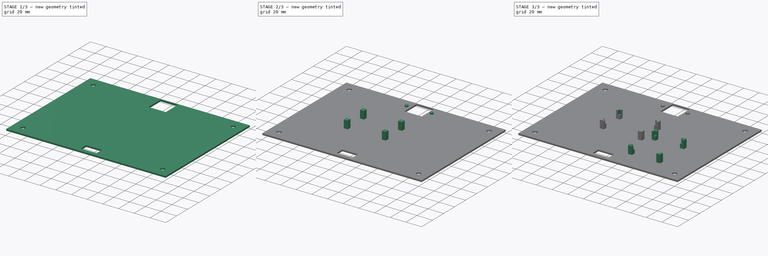
[diagram: build sequence overview — one tinted view per stage of 3, left to right]
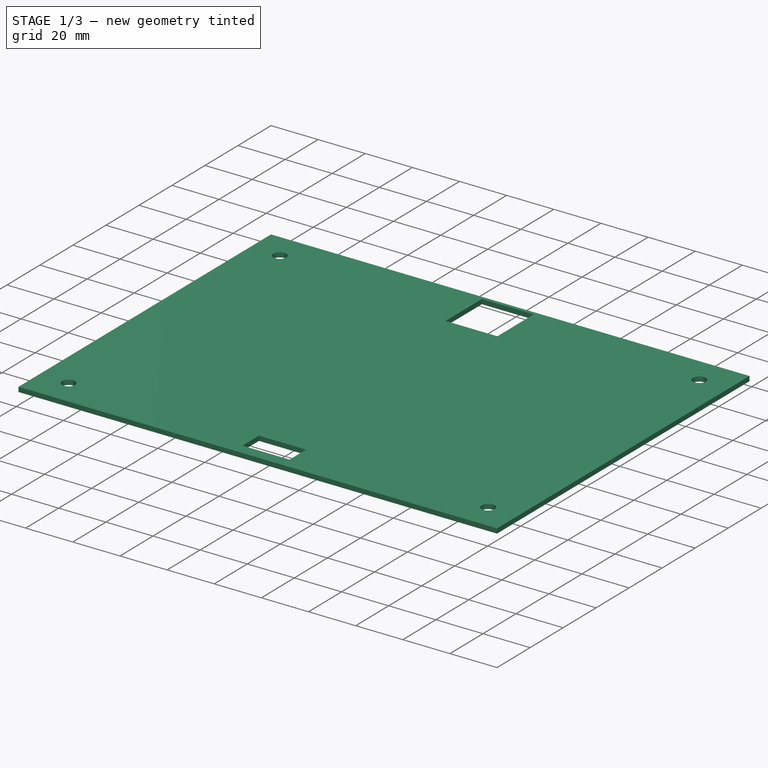
[diagram: stage 1 of 3 — iso view after this stage's code; geometry added in this stage tinted green]
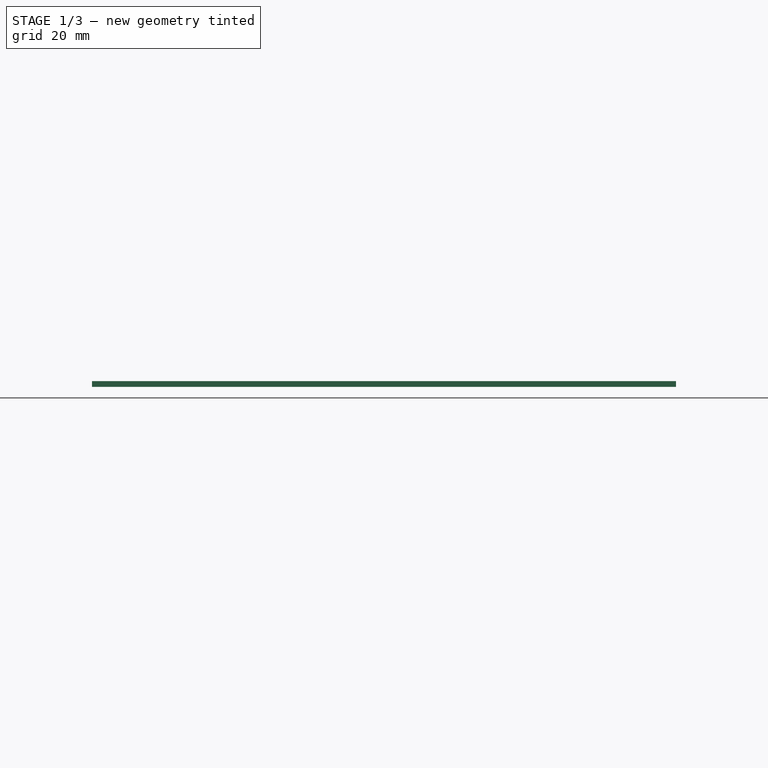
[diagram: stage 1 of 3 — front view after this stage's code; geometry added in this stage tinted green]
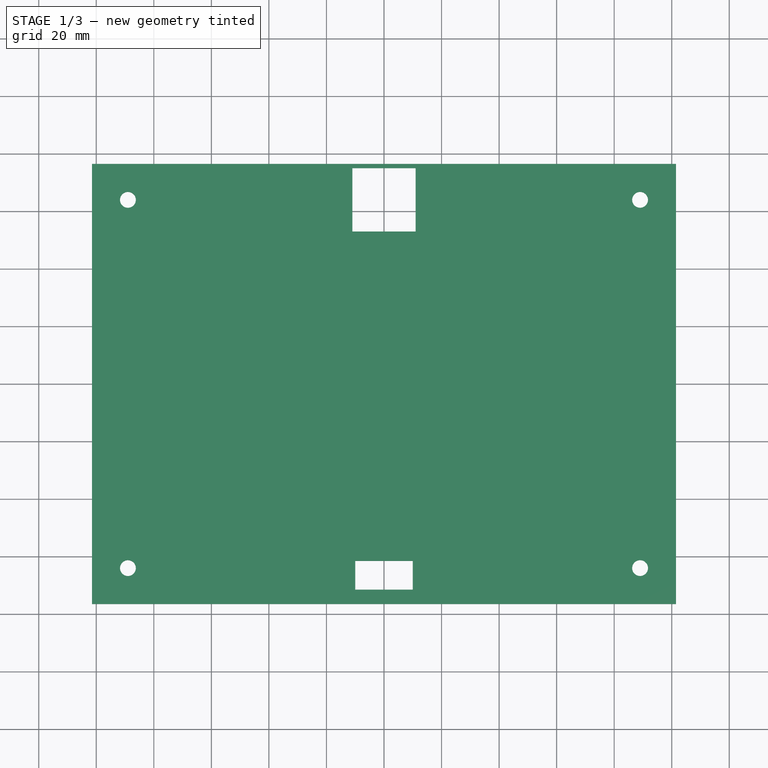
[diagram: stage 1 of 3 — top view after this stage's code; geometry added in this stage tinted green]
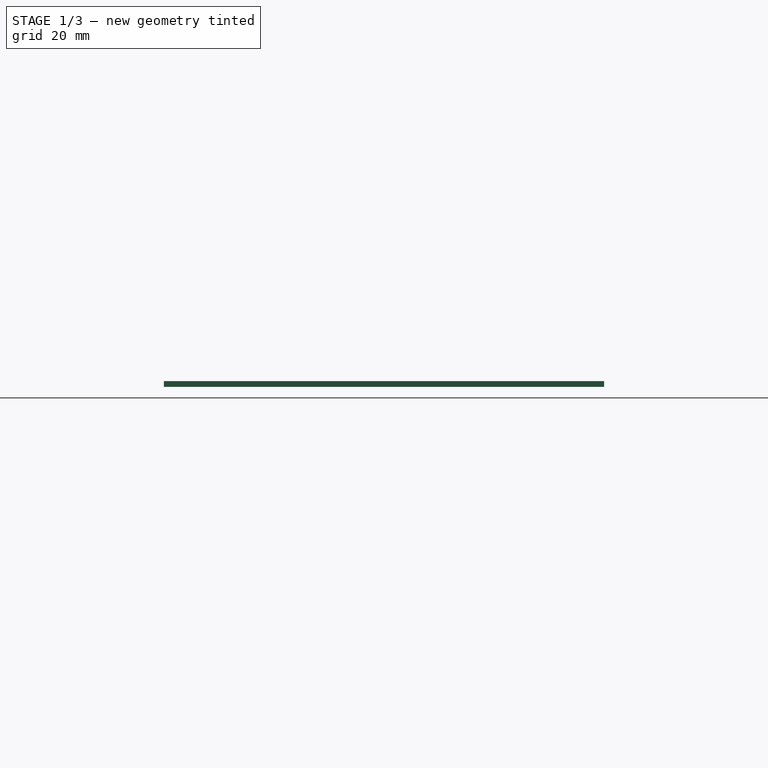
[diagram: stage 1 of 3 — right view after this stage's code; geometry added in this stage tinted green]
FCSTD DOCUMENT  (FreeCAD 0.21R33771 (Git))
Label: Frame75Back
License: All rights reserved
LicenseURL: https://en.wikipedia.org/wiki/All_rights_reserved
objects: Sketcher::SketchObject×8, PartDesign::Pad×4, PartDesign::Pocket×4, PartDesign::Plane×1, PartDesign::Body×1
note: 26 computed .brp shape members not serialized (recipe doc carries the construction recipe); baked Part::Feature solids carry a one-line shape summary decoded from their .brp

FEATURE [PartDesign::Plane] DatumPlane
  Length = 238.247
  MapMode = 5
  ResizeMode = 0
  Support = -> [XY_Plane]
  Width = 188.247
FEATURE [Sketcher::SketchObject] Sketch  label="FrameBaseS"
  AttachmentOffset = pos=(0,0,-2) rot=(0,0,1;0rad)
  FullyConstrained = true
  MapMode = 5
  Placement = pos=(0,0,-2) rot=(0,0,1;0rad)
  Support = -> [DatumPlane]
  sketch-geometry (5):
    g0: LineSegment StartX=-101.5 StartY=-76.5 StartZ=0 EndX=-101.5 EndY=76.5 EndZ=0
    g1: LineSegment StartX=-101.5 StartY=76.5 StartZ=0 EndX=101.5 EndY=76.5 EndZ=0
    g2: LineSegment StartX=101.5 StartY=76.5 StartZ=0 EndX=101.5 EndY=-76.5 EndZ=0
    g3: LineSegment StartX=101.5 StartY=-76.5 StartZ=0 EndX=-101.5 EndY=-76.5 EndZ=0
    g4: GeomPoint X=0 Y=0 Z=0
  constraints (12):
    c: Coincident(g0,g1)
    c: Coincident(g1,g2)
    c: Coincident(g2,g3)
    c: Coincident(g3,g0)
    c: Horizontal(g1)
    c: Horizontal(g3)
    c: Vertical(g0)
    c: Vertical(g2)
    c: Symmetric(g1,g0,g4)
    c: Coincident(g4,g-1)
    c: DistanceY(g0,g0) = 153  'Frame Height'
    c: DistanceX(g1,g1) = 203  'Frame Width'
FEATURE [PartDesign::Pad] Pad  label="FrameBase"
  Direction = (0,0,1)
  Length = 2
  Length2 = 10
  Profile = -> Sketch
  ReferenceAxis = -> Sketch [N_Axis]
  Type = 0
FEATURE [Sketcher::SketchObject] Sketch001  label="HolesS"
  ExternalGeometry = -> [Pad]
  FullyConstrained = true
  MapMode = 5
  Support = -> [DatumPlane]
  sketch-geometry (8):
    g0: LineSegment StartX=-89 StartY=64 StartZ=0 EndX=89 EndY=64 EndZ=0
    g1: LineSegment StartX=89 StartY=64 StartZ=0 EndX=89 EndY=-64 EndZ=0
    g2: LineSegment StartX=89 StartY=-64 StartZ=0 EndX=-89 EndY=-64 EndZ=0
    g3: LineSegment StartX=-89 StartY=-64 StartZ=0 EndX=-89 EndY=64 EndZ=0
    g4: Circle CenterX=89 CenterY=64 CenterZ=0 NormalX=0 NormalY=0 NormalZ=1 AngleXU=0 Radius=2.75
    g5: Circle CenterX=89 CenterY=-64 CenterZ=0 NormalX=0 NormalY=0 NormalZ=1 AngleXU=0 Radius=2.75
    g6: Circle CenterX=-89 CenterY=-64 CenterZ=0 NormalX=0 NormalY=0 NormalZ=1 AngleXU=0 Radius=2.75
    g7: Circle CenterX=-89 CenterY=64 CenterZ=0 NormalX=0 NormalY=0 NormalZ=1 AngleXU=0 Radius=2.75
  constraints (20):
    c: Horizontal(g0)
    c: Vertical(g1)
    c: Horizontal(g2)
    c: Vertical(g3)
    c: DistanceX(g-5,g3) = 12.5
    c: DistanceX(g1,g-6) = 12.5
    c: DistanceY(g0,g-5) = 12.5
    c: DistanceY(g-4,g2) = 12.5
    c: Coincident(g0,g3)
    c: Coincident(g3,g2)
    c: Coincident(g1,g2)
    c: Coincident(g0,g1)
    c: Equal(g4,g5)
    c: Equal(g4,g6)
    c: Equal(g4,g7)
    c: Diameter(g4) = 5.5  'HolesDiameter'
    c: Coincident(g0,g7)
    c: Coincident(g4,g0)
    c: Coincident(g5,g1)
    c: Coincident(g6,g2)
FEATURE [Sketcher::SketchObject] Sketch002  label="CutoutsS"
  ExternalGeometry = -> [Pad]
  FullyConstrained = true
  MapMode = 5
  Support = -> [DatumPlane]
  sketch-geometry (10):
    g0: LineSegment StartX=-10 StartY=-61.5 StartZ=0 EndX=-10 EndY=-71.5 EndZ=0
    g1: LineSegment StartX=-10 StartY=-71.5 StartZ=0 EndX=10 EndY=-71.5 EndZ=0
    g2: LineSegment StartX=10 StartY=-71.5 StartZ=0 EndX=10 EndY=-61.5 EndZ=0
    g3: LineSegment StartX=10 StartY=-61.5 StartZ=0 EndX=-10 EndY=-61.5 EndZ=0
    g4: GeomPoint X=0 Y=-66.5 Z=0
    g5: LineSegment StartX=-11 StartY=75 StartZ=0 EndX=-11 EndY=53 EndZ=0
    g6: LineSegment StartX=-11 StartY=53 StartZ=0 EndX=11 EndY=53 EndZ=0
    g7: LineSegment StartX=11 StartY=53 StartZ=0 EndX=11 EndY=75 EndZ=0
    g8: LineSegment StartX=11 StartY=75 StartZ=0 EndX=-11 EndY=75 EndZ=0
    g9: GeomPoint X=0 Y=64 Z=0
  constraints (26):
    c: Coincident(g0,g1)
    c: Coincident(g1,g2)
    c: Coincident(g2,g3)
    c: Coincident(g3,g0)
    c: Horizontal(g1)
    c: Horizontal(g3)
    c: Vertical(g0)
    c: Vertical(g2)
    c: Symmetric(g1,g0,g4)
    c: PointOnObject(g4,g-2)
    c: DistanceX(g3,g3) = 20  'CableWidth'
    c: DistanceY(g0,g0) = 10  'CableHeight'
    c: Distance(g4,g-3) = 10  'CableOffsetY'
    c: Coincident(g5,g6)
    c: Coincident(g6,g7)
    c: Coincident(g7,g8)
    c: Coincident(g8,g5)
    c: Horizontal(g6)
    c: Horizontal(g8)
    c: Vertical(g5)
    c: Vertical(g7)
    c: Symmetric(g6,g5,g9)
    c: DistanceX(g8,g8) = 22  'SensorWidth'
    c: DistanceY(g5,g5) = 22  'SensorHeight'
    c: PointOnObject(g9,g-2)
    c: Distance(g9,g-4) = 12.5  'SensorOffsetY'
FEATURE [PartDesign::Pocket] Pocket001  label="Cutouts"
  BaseFeature = -> Pad
  Direction = (0,0,-1)
  Length = 5
  Length2 = 5
  Profile = -> Sketch002
  ReferenceAxis = -> Sketch002 [N_Axis]
  Type = 2
FEATURE [PartDesign::Pocket] Pocket  label="Holes"
  BaseFeature = -> Pocket001
  Direction = (0,0,-1)
  Length = 5
  Length2 = 5
  Profile = -> Sketch001
  ReferenceAxis = -> Sketch001 [N_Axis]
  Type = 2
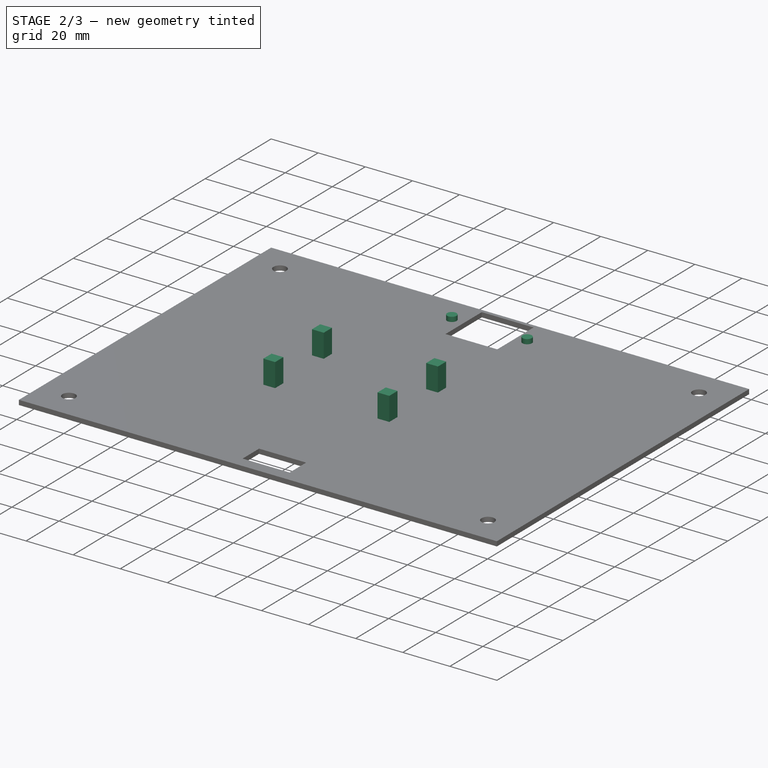
[diagram: stage 2 of 3 — iso view after this stage's code; geometry added in this stage tinted green]
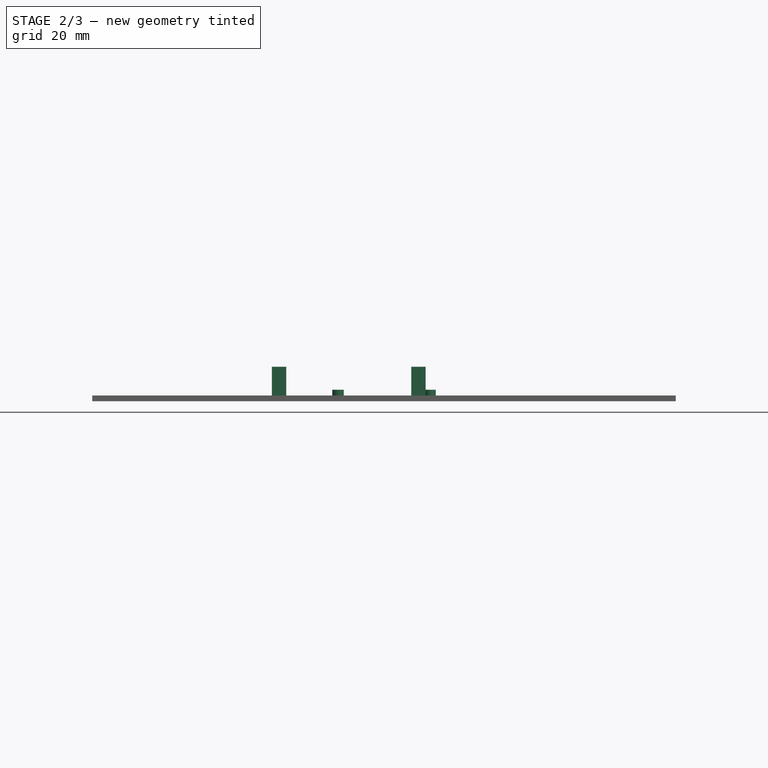
[diagram: stage 2 of 3 — front view after this stage's code; geometry added in this stage tinted green]
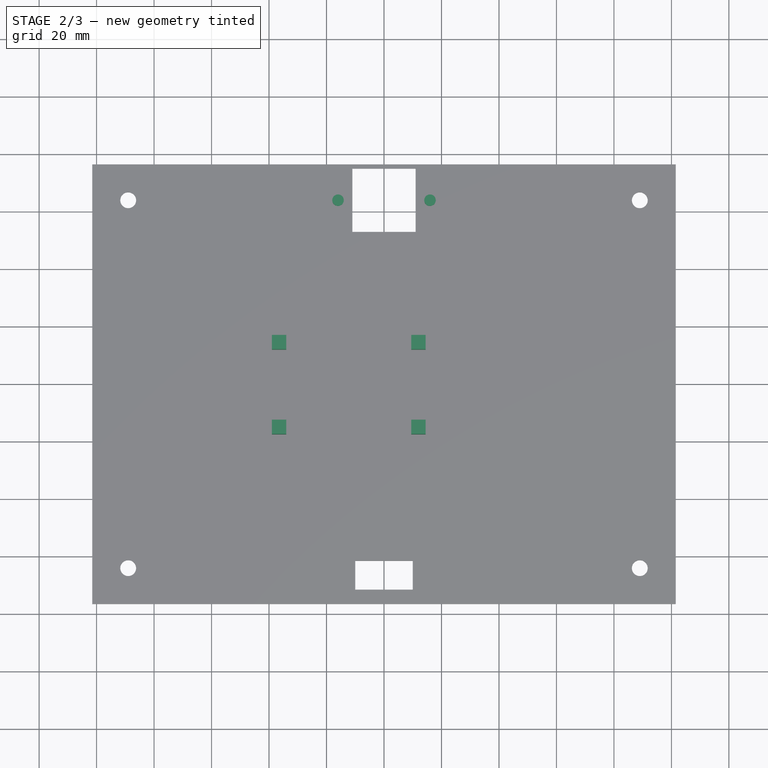
[diagram: stage 2 of 3 — top view after this stage's code; geometry added in this stage tinted green]
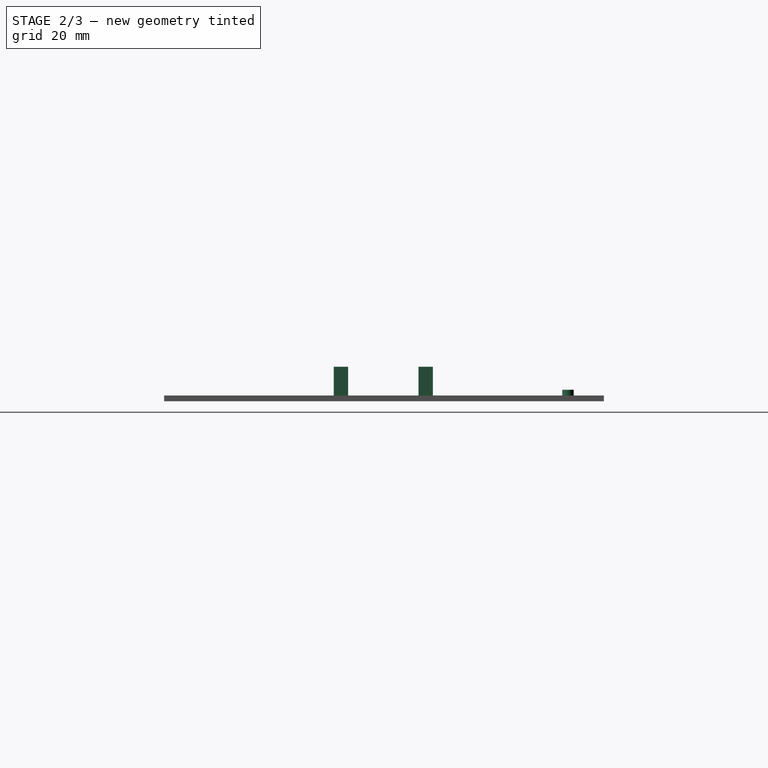
[diagram: stage 2 of 3 — right view after this stage's code; geometry added in this stage tinted green]
FEATURE [Sketcher::SketchObject] Sketch003  label="PegsS"
  ExternalGeometry = -> [Pad]
  FullyConstrained = true
  MapMode = 5
  Support = -> [DatumPlane]
  sketch-geometry (2):
    g0: Circle CenterX=-16 CenterY=64 CenterZ=0 NormalX=0 NormalY=0 NormalZ=1 AngleXU=0 Radius=2
    g1: Circle CenterX=16 CenterY=64 CenterZ=0 NormalX=0 NormalY=0 NormalZ=1 AngleXU=0 Radius=2
  constraints (6):
    c: Equal(g0,g1)
    c: Diameter(g0) = 4  'PegDiameter'
    c: Distance(g0,g-3) = 12.5  'LPegOffsetY'
    c: Distance(g1,g-3) = 12.5  'RPegOffsetY'
    c: DistanceX(g-2,g0) = -16  'LPegOffsetX'
    c: DistanceX(g-2,g1) = 16  'RPegOffsetX'
FEATURE [PartDesign::Pad] Pad001  label="Pegs"
  BaseFeature = -> Pocket
  Direction = (0,0,1)
  Length = 2
  Length2 = 10
  Profile = -> Sketch003
  ReferenceAxis = -> Sketch003 [N_Axis]
  Type = 0
FEATURE [Sketcher::SketchObject] Sketch005  label="ESP32MountsS"
  FullyConstrained = true
  MapMode = 5
  Support = -> [DatumPlane]
  sketch-geometry (25):
    g0: LineSegment StartX=-39 StartY=17 StartZ=0 EndX=-39 EndY=12 EndZ=0
    g1: LineSegment StartX=-39 StartY=12 StartZ=0 EndX=-34 EndY=12 EndZ=0
    g2: LineSegment StartX=-34 StartY=12 StartZ=0 EndX=-34 EndY=17 EndZ=0
    g3: LineSegment StartX=-34 StartY=17 StartZ=0 EndX=-39 EndY=17 EndZ=0
    g4: GeomPoint X=-36.5 Y=14.5 Z=0
    g5: LineSegment StartX=9.5 StartY=17 StartZ=0 EndX=9.5 EndY=12 EndZ=0
    g6: LineSegment StartX=9.5 StartY=12 StartZ=0 EndX=14.5 EndY=12 EndZ=0
    g7: LineSegment StartX=14.5 StartY=12 StartZ=0 EndX=14.5 EndY=17 EndZ=0
    g8: LineSegment StartX=14.5 StartY=17 StartZ=0 EndX=9.5 EndY=17 EndZ=0
    g9: GeomPoint X=12 Y=14.5 Z=0
    g10: LineSegment StartX=-39 StartY=-12.5 StartZ=0 EndX=-39 EndY=-17.5 EndZ=0
    g11: LineSegment StartX=-39 StartY=-17.5 StartZ=0 EndX=-34 EndY=-17.5 EndZ=0
    g12: LineSegment StartX=-34 StartY=-17.5 StartZ=0 EndX=-34 EndY=-12.5 EndZ=0
    g13: LineSegment StartX=-34 StartY=-12.5 StartZ=0 EndX=-39 EndY=-12.5 EndZ=0
    g14: GeomPoint X=-36.5 Y=-15 Z=0
    g15: LineSegment StartX=9.5 StartY=-12.5 StartZ=0 EndX=9.5 EndY=-17.5 EndZ=0
    g16: LineSegment StartX=9.5 StartY=-17.5 StartZ=0 EndX=14.5 EndY=-17.5 EndZ=0
    g17: LineSegment StartX=14.5 StartY=-17.5 StartZ=0 EndX=14.5 EndY=-12.5 EndZ=0
    g18: LineSegment StartX=14.5 StartY=-12.5 StartZ=0 EndX=9.5 EndY=-12.5 EndZ=0
    g19: GeomPoint X=12 Y=-15 Z=0
    g20: LineSegment StartX=-36.5 StartY=-15 StartZ=0 EndX=12 EndY=-15 EndZ=0
    g21: LineSegment StartX=-36.5 StartY=14.5 StartZ=0 EndX=12 EndY=14.5 EndZ=0
    g22: LineSegment StartX=12 StartY=14.5 StartZ=0 EndX=12 EndY=-15 EndZ=0
    g23: LineSegment StartX=-36.5 StartY=14.5 StartZ=0 EndX=-36.5 EndY=-15 EndZ=0
    g24: LineSegment StartX=0 StartY=14.5 StartZ=0 EndX=0 EndY=-15 EndZ=0
  constraints (64):
    c: Coincident(g0,g1)
    c: Coincident(g1,g2)
    c: Coincident(g2,g3)
    c: Coincident(g3,g0)
    c: Horizontal(g1)
    c: Horizontal(g3)
    c: Vertical(g0)
    c: Vertical(g2)
    c: Symmetric(g1,g0,g4)
    c: Coincident(g5,g6)
    c: Coincident(g6,g7)
    c: Coincident(g7,g8)
    c: Coincident(g8,g5)
    c: Horizontal(g6)
    c: Horizontal(g8)
    c: Vertical(g5)
    c: Vertical(g7)
    c: Symmetric(g6,g5,g9)
    c: Coincident(g10,g11)
    c: Coincident(g11,g12)
    c: Coincident(g12,g13)
    c: Coincident(g13,g10)
    c: Horizontal(g11)
    c: Horizontal(g13)
    c: Vertical(g10)
    c: Vertical(g12)
    c: Symmetric(g11,g10,g14)
    c: Coincident(g15,g16)
    c: Coincident(g16,g17)
    c: Coincident(g17,g18)
    c: Coincident(g18,g15)
    c: Horizontal(g16)
    c: Horizontal(g18)
    c: Vertical(g15)
    c: Vertical(g17)
    c: Symmetric(g16,g15,g19)
    c: DistanceX(g8,g8) = 5
    c: DistanceY(g7,g7) = 5
    c: DistanceX(g3,g3) = 5
    c: DistanceY(g0,g0) = 5
    c: DistanceX(g11,g11) = 5
    c: DistanceY(g10,g10) = 5
    c: DistanceX(g16,g16) = 5
    c: DistanceY(g17,g17) = 5
    c: Horizontal(g20)
    c: Horizontal(g21)
    c: Vertical(g22)
    c: Vertical(g23)
    c: Coincident(g4,g21)
    c: Coincident(g4,g23)
    c: Coincident(g14,g23)
    c: Coincident(g14,g20)
    c: Coincident(g9,g21)
    c: Coincident(g9,g22)
    c: Coincident(g19,g20)
    c: Coincident(g19,g22)
    c: DistanceX(g21,g21) = 48.5  'ESPWidth'
    c: DistanceY(g23,g23) = 29.5  'ESPHeight'
    c: Vertical(g24)
    c: PointOnObject(g24,g21)
    c: PointOnObject(g24,g20)
    c: Distance(g19,g24) = 12  'RibbonOffset'
    c: PointOnObject(g24,g-2)  'BoardOffsetX'
    c: DistanceY(g-1,g24) = -15  'BoardOffsetY'
FEATURE [PartDesign::Pad] Pad003  label="ESP32Mounts"
  BaseFeature = -> Pad001
  Direction = (0,0,1)
  Length = 10
  Length2 = 10
  Profile = -> Sketch005
  ReferenceAxis = -> Sketch005 [N_Axis]
  Type = 0
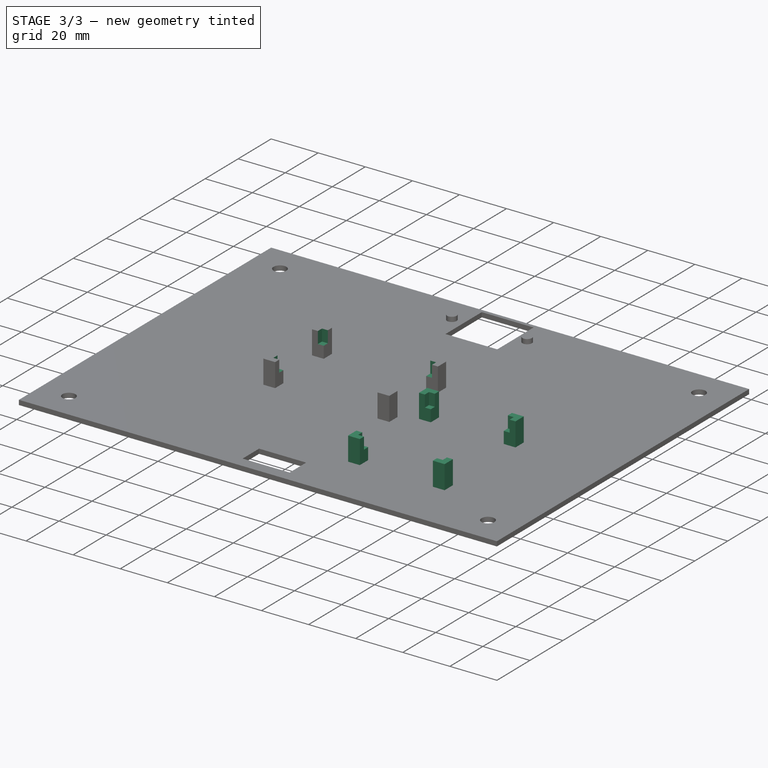
[diagram: stage 3 of 3 — iso view after this stage's code; geometry added in this stage tinted green]
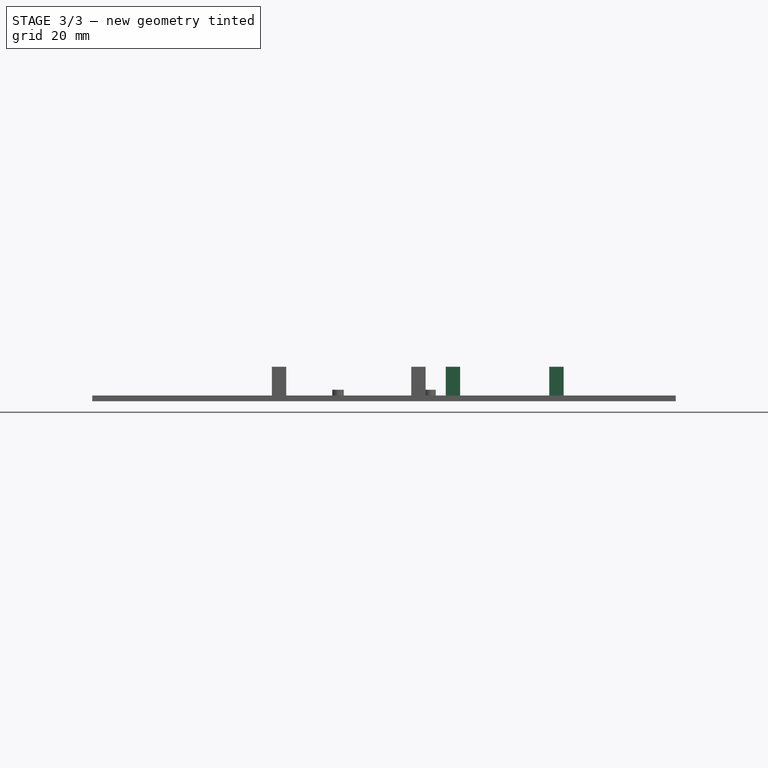
[diagram: stage 3 of 3 — front view after this stage's code; geometry added in this stage tinted green]
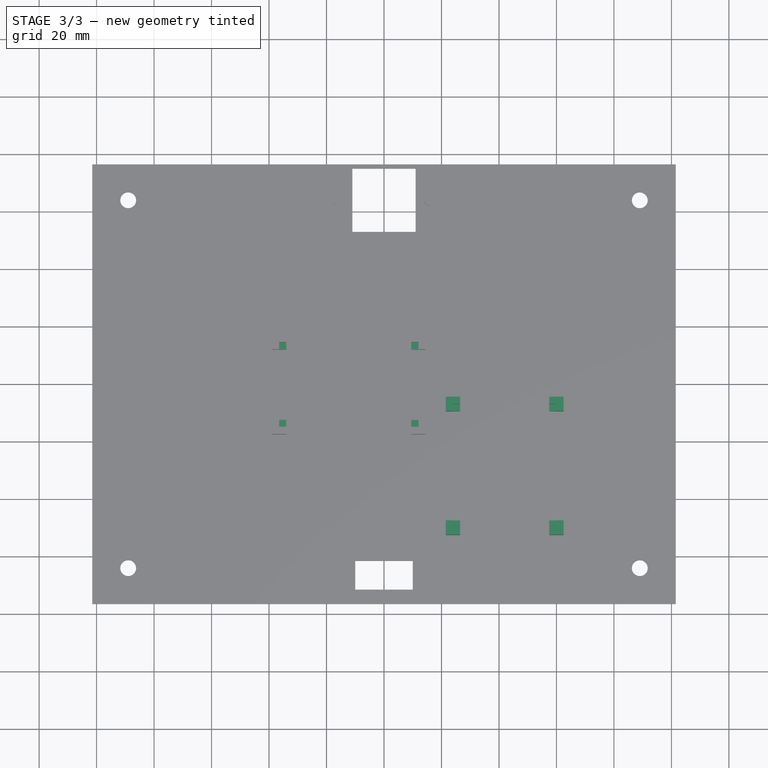
[diagram: stage 3 of 3 — top view after this stage's code; geometry added in this stage tinted green]
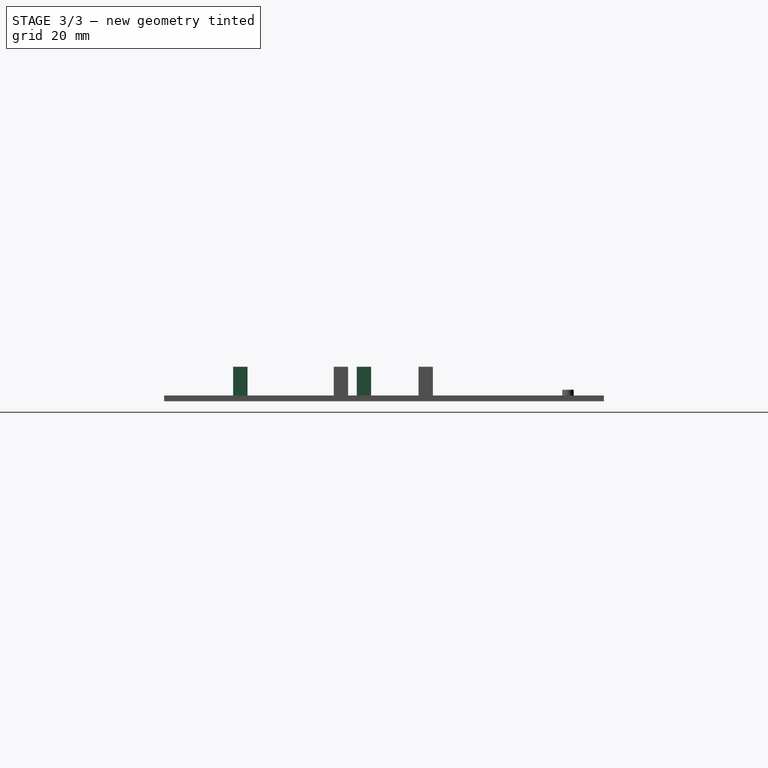
[diagram: stage 3 of 3 — right view after this stage's code; geometry added in this stage tinted green]
FEATURE [Sketcher::SketchObject] Sketch006  label="ESP32MountsCutS"
  ExternalGeometry = -> [Pad003]
  FullyConstrained = true
  MapMode = 5
  Placement = pos=(0,0,10) rot=(0,0,1;0rad)
  Support = -> [Pad003]
  sketch-geometry (16):
    g0: LineSegment StartX=-36.5 StartY=14.5 StartZ=0 EndX=-34 EndY=14.5 EndZ=0
    g1: LineSegment StartX=-34 StartY=14.5 StartZ=0 EndX=-34 EndY=12 EndZ=0
    g2: LineSegment StartX=-34 StartY=12 StartZ=0 EndX=-36.5 EndY=12 EndZ=0
    g3: LineSegment StartX=-36.5 StartY=12 StartZ=0 EndX=-36.5 EndY=14.5 EndZ=0
    g4: LineSegment StartX=12 StartY=14.5 StartZ=0 EndX=9.5 EndY=14.5 EndZ=0
    g5: LineSegment StartX=9.5 StartY=14.5 StartZ=0 EndX=9.5 EndY=12 EndZ=0
    g6: LineSegment StartX=9.5 StartY=12 StartZ=0 EndX=12 EndY=12 EndZ=0
    g7: LineSegment StartX=12 StartY=12 StartZ=0 EndX=12 EndY=14.5 EndZ=0
    g8: LineSegment StartX=12 StartY=-12.5 StartZ=0 EndX=9.5 EndY=-12.5 EndZ=0
    g9: LineSegment StartX=9.5 StartY=-12.5 StartZ=0 EndX=9.5 EndY=-15 EndZ=0
    g10: LineSegment StartX=9.5 StartY=-15 StartZ=0 EndX=12 EndY=-15 EndZ=0
    g11: LineSegment StartX=12 StartY=-15 StartZ=0 EndX=12 EndY=-12.5 EndZ=0
    g12: LineSegment StartX=-36.5 StartY=-12.5 StartZ=0 EndX=-34 EndY=-12.5 EndZ=0
    g13: LineSegment StartX=-34 StartY=-12.5 StartZ=0 EndX=-34 EndY=-15 EndZ=0
    g14: LineSegment StartX=-34 StartY=-15 StartZ=0 EndX=-36.5 EndY=-15 EndZ=0
    g15: LineSegment StartX=-36.5 StartY=-15 StartZ=0 EndX=-36.5 EndY=-12.5 EndZ=0
  constraints (44):
    c: Coincident(g0,g1)
    c: Coincident(g1,g2)
    c: Coincident(g2,g3)
    c: Coincident(g3,g0)
    c: Horizontal(g0)
    c: Horizontal(g2)
    c: Vertical(g1)
    c: Vertical(g3)
    c: Coincident(g4,g5)
    c: Coincident(g5,g6)
    c: Coincident(g6,g7)
    c: Coincident(g7,g4)
    c: Horizontal(g4)
    c: Horizontal(g6)
    c: Vertical(g5)
    c: Vertical(g7)
    c: Coincident(g8,g9)
    c: Coincident(g9,g10)
    c: Coincident(g10,g11)
    c: Coincident(g11,g8)
    c: Horizontal(g8)
    c: Horizontal(g10)
    c: Vertical(g9)
    c: Vertical(g11)
    c: Coincident(g12,g13)
    c: Coincident(g13,g14)
    c: Coincident(g14,g15)
    c: Coincident(g15,g12)
    c: Horizontal(g12)
    c: Horizontal(g14)
    c: Vertical(g13)
    c: Vertical(g15)
    c: DistanceX(g0,g0) = 2.5
    c: DistanceY(g3,g3) = 2.5
    c: DistanceX(g4,g4) = 2.5
    c: DistanceY(g7,g7) = 2.5
    c: DistanceX(g14,g14) = 2.5
    c: DistanceY(g15,g15) = 2.5
    c: DistanceX(g10,g10) = 2.5
    c: DistanceY(g11,g11) = 2.5
    c: Coincident(g1,g-3)
    c: Coincident(g5,g-4)
    c: Coincident(g12,g-6)
    c: Coincident(g8,g-5)
FEATURE [PartDesign::Pocket] Pocket002  label="ESP32MountsCut"
  BaseFeature = -> Pad003
  Direction = (0,0,-1)
  Length = 5
  Length2 = 5
  Profile = -> Sketch006
  ReferenceAxis = -> Sketch006 [N_Axis]
  Type = 0
FEATURE [Sketcher::SketchObject] Sketch007  label="PSUMountsS"
  FullyConstrained = true
  MapMode = 5
  Support = -> [DatumPlane]
  sketch-geometry (25):
    g0: LineSegment StartX=21.5 StartY=-4.5 StartZ=0 EndX=21.5 EndY=-9.5 EndZ=0
    g1: LineSegment StartX=21.5 StartY=-9.5 StartZ=0 EndX=26.5 EndY=-9.5 EndZ=0
    g2: LineSegment StartX=26.5 StartY=-9.5 StartZ=0 EndX=26.5 EndY=-4.5 EndZ=0
    g3: LineSegment StartX=26.5 StartY=-4.5 StartZ=0 EndX=21.5 EndY=-4.5 EndZ=0
    g4: GeomPoint X=24 Y=-7 Z=0
    g5: LineSegment StartX=57.5 StartY=-4.5 StartZ=0 EndX=57.5 EndY=-9.5 EndZ=0
    g6: LineSegment StartX=57.5 StartY=-9.5 StartZ=0 EndX=62.5 EndY=-9.5 EndZ=0
    g7: LineSegment StartX=62.5 StartY=-9.5 StartZ=0 EndX=62.5 EndY=-4.5 EndZ=0
    g8: LineSegment StartX=62.5 StartY=-4.5 StartZ=0 EndX=57.5 EndY=-4.5 EndZ=0
    g9: GeomPoint X=60 Y=-7 Z=0
    g10: LineSegment StartX=21.5 StartY=-47.5 StartZ=0 EndX=21.5 EndY=-52.5 EndZ=0
    g11: LineSegment StartX=21.5 StartY=-52.5 StartZ=0 EndX=26.5 EndY=-52.5 EndZ=0
    g12: LineSegment StartX=26.5 StartY=-52.5 StartZ=0 EndX=26.5 EndY=-47.5 EndZ=0
    g13: LineSegment StartX=26.5 StartY=-47.5 StartZ=0 EndX=21.5 EndY=-47.5 EndZ=0
    g14: GeomPoint X=24 Y=-50 Z=0
    g15: LineSegment StartX=57.5 StartY=-47.5 StartZ=0 EndX=57.5 EndY=-52.5 EndZ=0
    g16: LineSegment StartX=57.5 StartY=-52.5 StartZ=0 EndX=62.5 EndY=-52.5 EndZ=0
    g17: LineSegment StartX=62.5 StartY=-52.5 StartZ=0 EndX=62.5 EndY=-47.5 EndZ=0
    g18: LineSegment StartX=62.5 StartY=-47.5 StartZ=0 EndX=57.5 EndY=-47.5 EndZ=0
    g19: GeomPoint X=60 Y=-50 Z=0
    g20: LineSegment StartX=24 StartY=-50 StartZ=0 EndX=60 EndY=-50 EndZ=0
    g21: LineSegment StartX=24 StartY=-7 StartZ=0 EndX=60 EndY=-7 EndZ=0
    g22: LineSegment StartX=60 StartY=-7 StartZ=0 EndX=60 EndY=-50 EndZ=0
    g23: LineSegment StartX=24 StartY=-7 StartZ=0 EndX=24 EndY=-50 EndZ=0
    g24: LineSegment StartX=48 StartY=-7 StartZ=0 EndX=48 EndY=-50 EndZ=0
  constraints (64):
    c: Coincident(g0,g1)
    c: Coincident(g1,g2)
    c: Coincident(g2,g3)
    c: Coincident(g3,g0)
    c: Horizontal(g1)
    c: Horizontal(g3)
    c: Vertical(g0)
    c: Vertical(g2)
    c: Symmetric(g1,g0,g4)
    c: Coincident(g5,g6)
    c: Coincident(g6,g7)
    c: Coincident(g7,g8)
    c: Coincident(g8,g5)
    c: Horizontal(g6)
    c: Horizontal(g8)
    c: Vertical(g5)
    c: Vertical(g7)
    c: Symmetric(g6,g5,g9)
    c: Coincident(g10,g11)
    c: Coincident(g11,g12)
    c: Coincident(g12,g13)
    c: Coincident(g13,g10)
    c: Horizontal(g11)
    c: Horizontal(g13)
    c: Vertical(g10)
    c: Vertical(g12)
    c: Symmetric(g11,g10,g14)
    c: Coincident(g15,g16)
    c: Coincident(g16,g17)
    c: Coincident(g17,g18)
    c: Coincident(g18,g15)
    c: Horizontal(g16)
    c: Horizontal(g18)
    c: Vertical(g15)
    c: Vertical(g17)
    c: Symmetric(g16,g15,g19)
    c: DistanceX(g8,g8) = 5
    c: DistanceY(g7,g7) = 5
    c: DistanceX(g3,g3) = 5
    c: DistanceY(g0,g0) = 5
    c: DistanceX(g11,g11) = 5
    c: DistanceY(g10,g10) = 5
    c: DistanceX(g16,g16) = 5
    c: DistanceY(g17,g17) = 5
    c: Horizontal(g20)
    c: Horizontal(g21)
    c: Vertical(g22)
    c: Vertical(g23)
    c: Coincident(g4,g21)
    c: Coincident(g4,g23)
    c: Coincident(g14,g23)
    c: Coincident(g14,g20)
    c: Coincident(g9,g21)
    c: Coincident(g9,g22)
    c: Coincident(g19,g20)
    c: Coincident(g19,g22)
    c: DistanceX(g21,g21) = 36  'BoardWidth'
    c: DistanceY(g23,g23) = 43  'BoardHeight'
    c: Vertical(g24)
    c: PointOnObject(g24,g21)
    c: PointOnObject(g24,g20)
    c: Distance(g19,g24) = 12  'RibbonOffset'
    c: DistanceY(g-1,g24) = -50  'BoardOffsetY'
    c: DistanceX(g-2,g19) = 60  'BoardOffsetX'
FEATURE [PartDesign::Pad] Pad004  label="PSUMounts"
  BaseFeature = -> Pocket002
  Direction = (0,0,1)
  Length = 10
  Length2 = 10
  Profile = -> Sketch007
  ReferenceAxis = -> Sketch007 [N_Axis]
  Type = 0
FEATURE [Sketcher::SketchObject] Sketch008  label="PSUMountsCutS"
  ExternalGeometry = -> [Pad004]
  FullyConstrained = true
  MapMode = 5
  Placement = pos=(0,0,10) rot=(0,0,1;0rad)
  Support = -> [Pad004]
  sketch-geometry (16):
    g0: LineSegment StartX=24 StartY=-7 StartZ=0 EndX=26.5 EndY=-7 EndZ=0
    g1: LineSegment StartX=26.5 StartY=-7 StartZ=0 EndX=26.5 EndY=-9.5 EndZ=0
    g2: LineSegment StartX=26.5 StartY=-9.5 StartZ=0 EndX=24 EndY=-9.5 EndZ=0
    g3: LineSegment StartX=24 StartY=-9.5 StartZ=0 EndX=24 EndY=-7 EndZ=0
    g4: LineSegment StartX=57.5 StartY=-7 StartZ=0 EndX=60 EndY=-7 EndZ=0
    g5: LineSegment StartX=60 StartY=-7 StartZ=0 EndX=60 EndY=-9.5 EndZ=0
    g6: LineSegment StartX=60 StartY=-9.5 StartZ=0 EndX=57.5 EndY=-9.5 EndZ=0
    g7: LineSegment StartX=57.5 StartY=-9.5 StartZ=0 EndX=57.5 EndY=-7 EndZ=0
    g8: LineSegment StartX=24 StartY=-47.5 StartZ=0 EndX=26.5 EndY=-47.5 EndZ=0
    g9: LineSegment StartX=26.5 StartY=-47.5 StartZ=0 EndX=26.5 EndY=-50 EndZ=0
    g10: LineSegment StartX=26.5 StartY=-50 StartZ=0 EndX=24 EndY=-50 EndZ=0
    g11: LineSegment StartX=24 StartY=-50 StartZ=0 EndX=24 EndY=-47.5 EndZ=0
    g12: LineSegment StartX=57.5 StartY=-47.5 StartZ=0 EndX=60 EndY=-47.5 EndZ=0
    g13: LineSegment StartX=60 StartY=-47.5 StartZ=0 EndX=60 EndY=-50 EndZ=0
    g14: LineSegment StartX=60 StartY=-50 StartZ=0 EndX=57.5 EndY=-50 EndZ=0
    g15: LineSegment StartX=57.5 StartY=-50 StartZ=0 EndX=57.5 EndY=-47.5 EndZ=0
  constraints (44):
    c: Coincident(g0,g1)
    c: Coincident(g1,g2)
    c: Coincident(g2,g3)
    c: Coincident(g3,g0)
    c: Horizontal(g0)
    c: Horizontal(g2)
    c: Vertical(g1)
    c: Vertical(g3)
    c: Coincident(g4,g5)
    c: Coincident(g5,g6)
    c: Coincident(g6,g7)
    c: Coincident(g7,g4)
    c: Horizontal(g4)
    c: Horizontal(g6)
    c: Vertical(g5)
    c: Vertical(g7)
    c: Coincident(g8,g9)
    c: Coincident(g9,g10)
    c: Coincident(g10,g11)
    c: Coincident(g11,g8)
    c: Horizontal(g8)
    c: Horizontal(g10)
    c: Vertical(g9)
    c: Vertical(g11)
    c: Coincident(g12,g13)
    c: Coincident(g13,g14)
    c: Coincident(g14,g15)
    c: Coincident(g15,g12)
    c: Horizontal(g12)
    c: Horizontal(g14)
    c: Vertical(g13)
    c: Vertical(g15)
    c: DistanceX(g0,g0) = 2.5
    c: DistanceY(g3,g3) = 2.5
    c: DistanceX(g4,g4) = 2.5
    c: DistanceY(g5,g5) = 2.5
    c: DistanceX(g10,g10) = 2.5
    c: DistanceY(g11,g11) = 2.5
    c: DistanceY(g13,g13) = 2.5
    c: DistanceX(g14,g14) = 2.5
    c: Coincident(g-3,g1)
    c: Coincident(g-4,g6)
    c: Coincident(g8,g-5)
    c: Coincident(g-6,g12)
FEATURE [PartDesign::Pocket] Pocket003  label="PSUMountsCut"
  BaseFeature = -> Pad004
  Direction = (0,0,-1)
  Length = 5
  Length2 = 5
  Profile = -> Sketch008
  ReferenceAxis = -> Sketch008 [N_Axis]
  Type = 0
FEATURE [PartDesign::Body] Body  label="FrameBack"
  Group = -> [DatumPlane,Sketch,Pad,Sketch001,Sketch002,Pocket001,Pocket,Sketch003,Pad001,Sketch005,Pad003,Sketch006,Pocket002,Sketch007,Pad004,Sketch008,Pocket003]
  Origin = -> Origin
  Tip = -> Pocket003
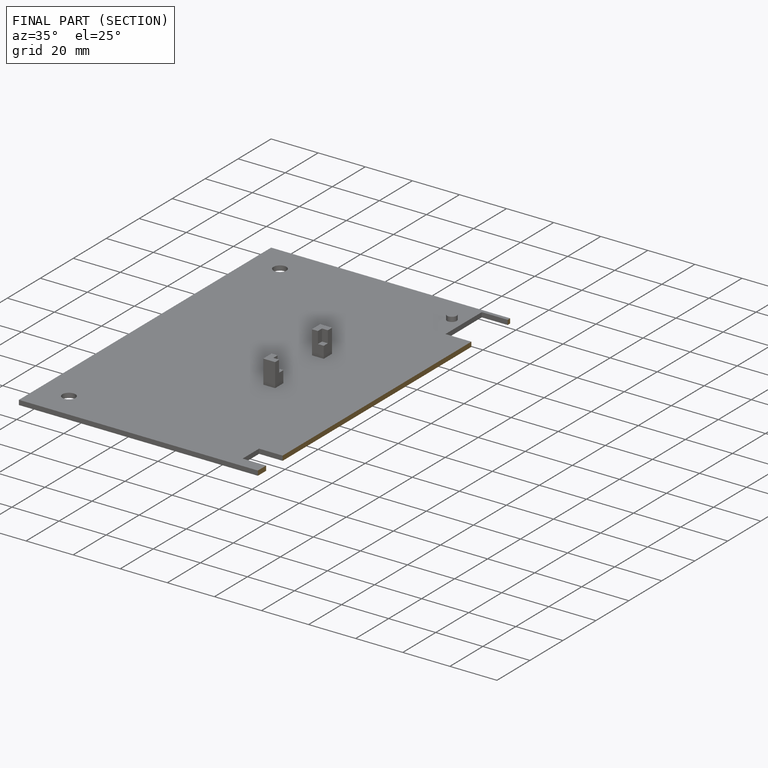
[diagram: finished part — half-section view (interior)]
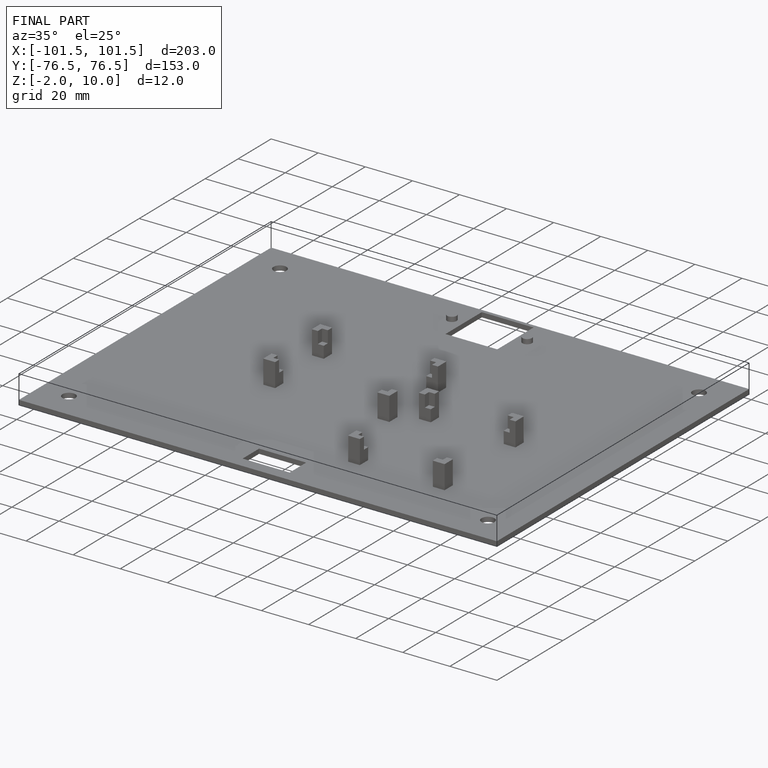
[diagram: finished part — iso view with bounding-box wireframe]
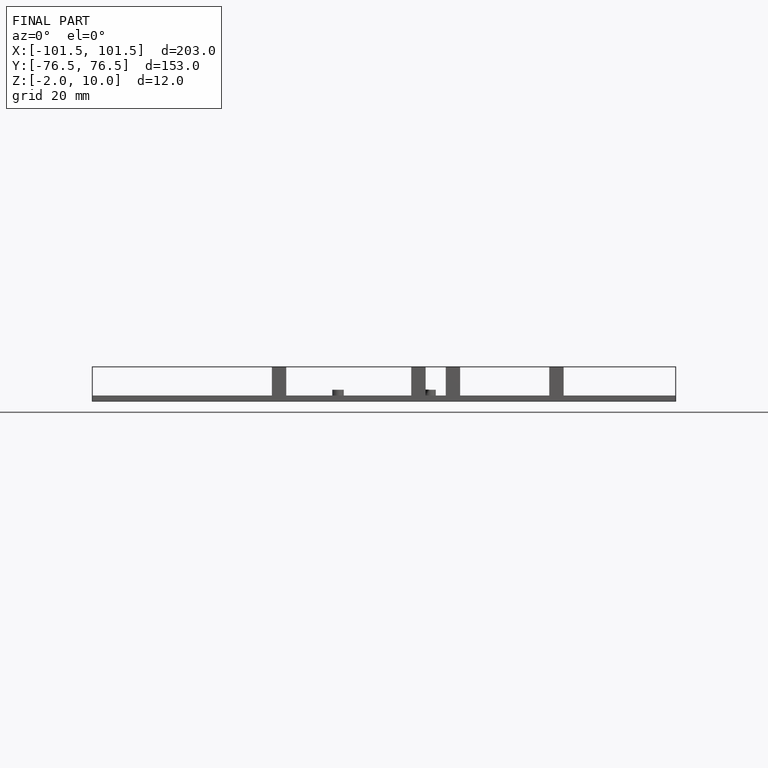
[diagram: finished part — front view with bounding-box wireframe]
